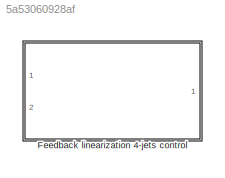
MODEL slx_5a53060928af
KIND library
CONFIG AbsTol = auto
CONFIG EnableMultiTasking = off
CONFIG FixedStep = auto
CONFIG MaxStep = auto
CONFIG MinStep = auto
CONFIG RelTol = 1e-3
CONFIG SampleTimeConstraint = Unconstrained
CONFIG SolverName = VariableStepAuto
CONFIG StartTime = 0.0
CONFIG StopTime = 10.0
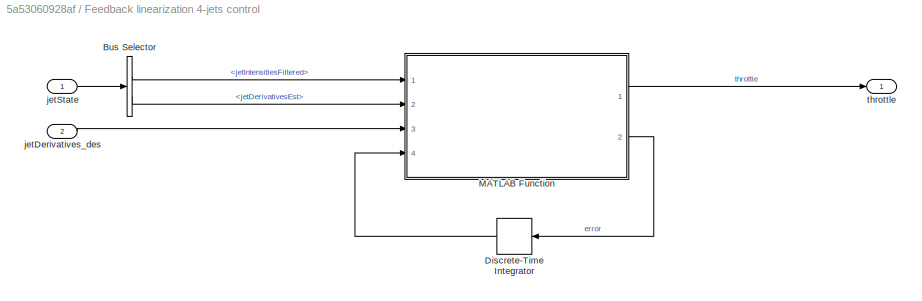
BLOCK [SubSystem] Feedback linearization 4-jets control
  Ports = [2, 1]
  RequestExecContextInheritance = off
BLOCK [BusSelector] Feedback linearization 4-jets control/Bus Selector
  OutputSignals = jetIntensitiesFiltered,jetDerivativesEst
  Ports = [1, 2]
BLOCK [DiscreteIntegrator] Feedback linearization 4-jets control/Discrete-Time Integrator
  ICPrevOutput = DiscIntNeverNeededParam
  ICPrevScaledInput = DiscIntNeverNeededParam
  InitialConditionSetting = Auto
  Ports = [1, 1]
  SampleTime = Config.tStep
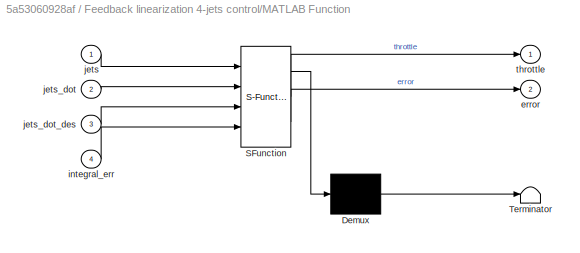
BLOCK [SubSystem] Feedback linearization 4-jets control/MATLAB Function
  ErrorFcn = Stateflow.Translate.translate
  PermitHierarchicalResolution = ExplicitOnly
  Ports = [4, 2]
  RequestExecContextInheritance = off
  SFBlockType = MATLAB Function
  TreatAsAtomicUnit = on
BLOCK [Demux] Feedback linearization 4-jets control/MATLAB Function/ Demux 
  Outputs = 1
  Ports = [1, 1]
BLOCK [S-Function] Feedback linearization 4-jets control/MATLAB Function/ SFunction 
  EnableBusSupport = off
  FunctionName = sf_sfun
  Parameters = Config
  PortCounts = [4 3]
  Ports = [4, 3]
  SFcnIsStateOwnerBlock = off
  SFunctionDeploymentMode = off
  Tag = Stateflow S-Function 54
BLOCK [Terminator] Feedback linearization 4-jets control/MATLAB Function/ Terminator 
BLOCK [Outport] Feedback linearization 4-jets control/MATLAB Function/error
  Port = 2
  VectorParamsAs1DForOutWhenUnconnected = off
BLOCK [Inport] Feedback linearization 4-jets control/MATLAB Function/integral_err
  Port = 4
BLOCK [Inport] Feedback linearization 4-jets control/MATLAB Function/jets
BLOCK [Inport] Feedback linearization 4-jets control/MATLAB Function/jets_dot
  Port = 2
BLOCK [Inport] Feedback linearization 4-jets control/MATLAB Function/jets_dot_des
  Port = 3
BLOCK [Outport] Feedback linearization 4-jets control/MATLAB Function/throttle
  VectorParamsAs1DForOutWhenUnconnected = off
BLOCK [Inport] Feedback linearization 4-jets control/jetDerivatives_des
  Port = 2
BLOCK [Inport] Feedback linearization 4-jets control/jetState
BLOCK [Outport] Feedback linearization 4-jets control/throttle
  VectorParamsAs1DForOutWhenUnconnected = off
LINE Feedback linearization 4-jets control/Bus Selector:1 -> Feedback linearization 4-jets control/MATLAB Function:1
LINE Feedback linearization 4-jets control/Bus Selector:2 -> Feedback linearization 4-jets control/MATLAB Function:2
LINE Feedback linearization 4-jets control/Discrete-Time Integrator:1 -> Feedback linearization 4-jets control/MATLAB Function:4
LINE Feedback linearization 4-jets control/MATLAB Function:1 -> Feedback linearization 4-jets control/throttle:1
LINE Feedback linearization 4-jets control/MATLAB Function:2 -> Feedback linearization 4-jets control/Discrete-Time Integrator:1
LINE Feedback linearization 4-jets control/jetDerivatives_des:1 -> Feedback linearization 4-jets control/MATLAB Function:3
LINE Feedback linearization 4-jets control/jetState:1 -> Feedback linearization 4-jets control/Bus Selector:1
CHART Feedback linearization 4-jets control/MATLAB Function states=1 transitions=1
  STATE_LABEL 'eML_blk_kernel()'
  STATE_LABEL 'SCRIPT:\nfunction [throttle, error]  = fl_jets_control(jets, jets_dot, jets_dot_des, Config, integral_err)\n\n[throttle, error]  = iRonCubLib_v1.fl_jets_control(jets, jets_dot, jets_dot_des, Config, integral_err);\nend'
CHART  states=0 transitions=0
